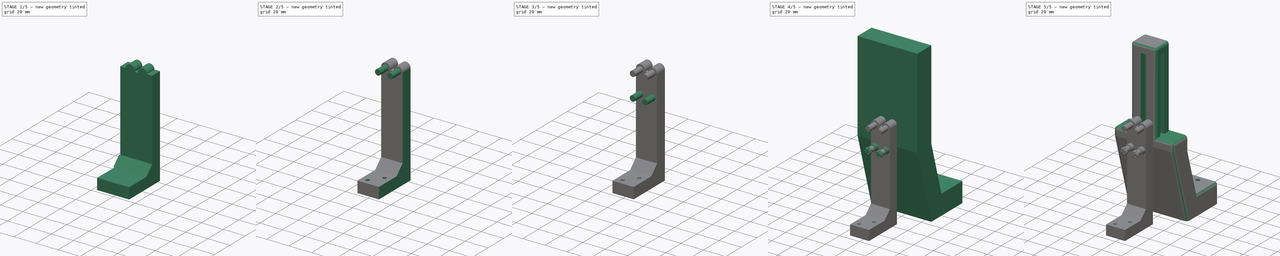
[diagram: build sequence overview — one tinted view per stage of 5, left to right]
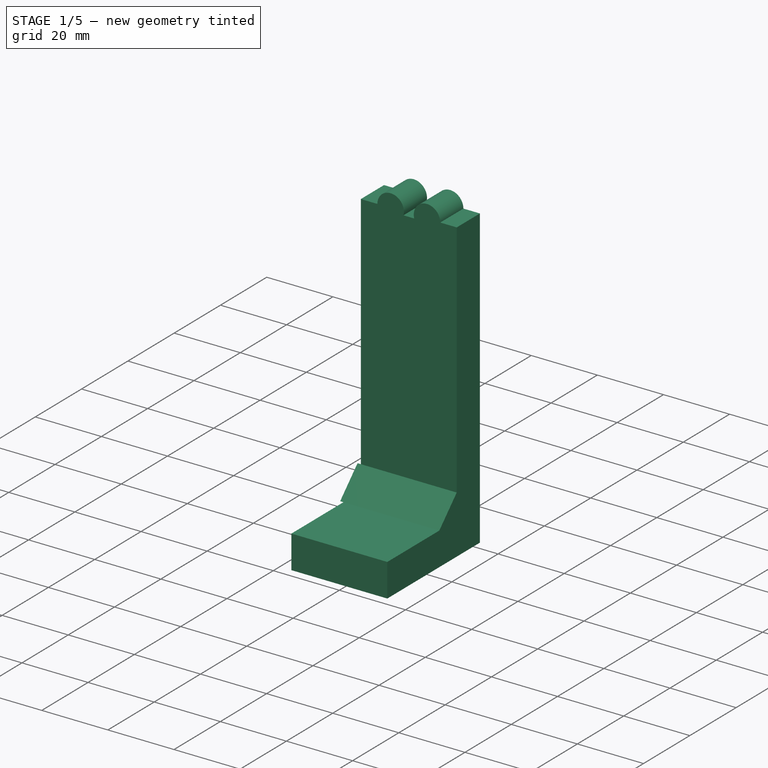
[diagram: stage 1 of 5 — iso view after this stage's code; geometry added in this stage tinted green]
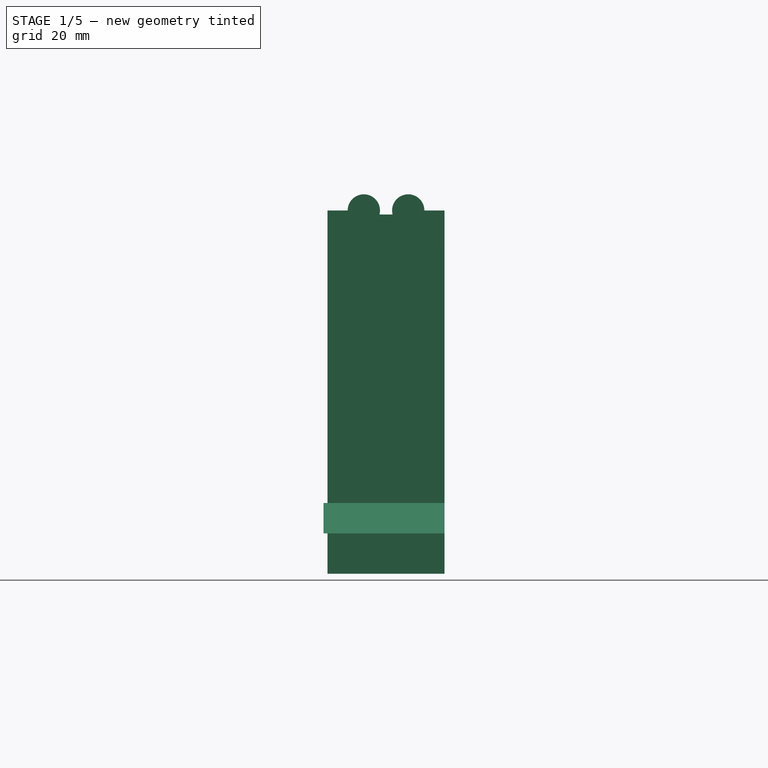
[diagram: stage 1 of 5 — front view after this stage's code; geometry added in this stage tinted green]
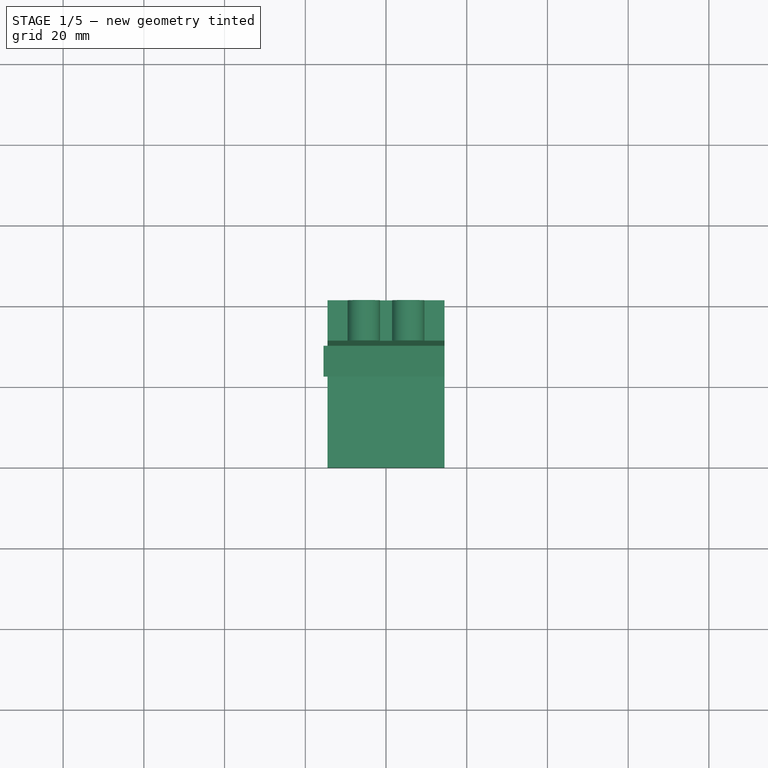
[diagram: stage 1 of 5 — top view after this stage's code; geometry added in this stage tinted green]
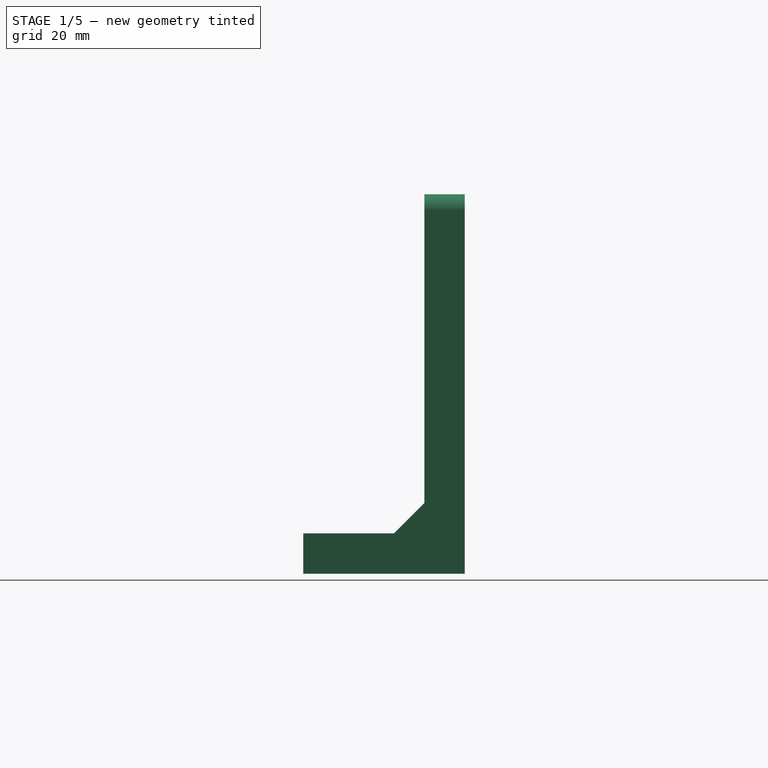
[diagram: stage 1 of 5 — right view after this stage's code; geometry added in this stage tinted green]
FCSTD DOCUMENT  (FreeCAD 1.0R39319 (Git))
Label: support gauge v2 
License: All rights reserved
LicenseURL: https://en.wikipedia.org/wiki/All_rights_reserved
objects: Sketcher::SketchObject×19, PartDesign::Pad×11, PartDesign::Pocket×7, PartDesign::Body×5, PartDesign::SubShapeBinder×3, PartDesign::Fillet×1, PartDesign::Revolution×1, PartDesign::PolarPattern×1, PartDesign::Boolean×1
note: 110 computed .brp shape members not serialized (recipe doc carries the construction recipe); baked Part::Feature solids carry a one-line shape summary decoded from their .brp

FEATURE [PartDesign::Body] Body002  label="Body002 extérieur"
  AllowCompound = false
  Group = -> [Sketch010,Pad003,Sketch012,Pad004,Sketch013,Pocket006,Sketch014,Pad005,Sketch015,Pad006]
  Origin = -> Origin002
  Tip = -> Pad006
FEATURE [Sketcher::SketchObject] Sketch016
  ArcFitTolerance = 1e-06
  AttachmentSupport = -> [XZ_Plane005]
  FullyConstrained = false
  MakeInternals = false
  MapMode = 5
  Placement = pos=(0,0,0) rot=(1,0,0;1.5708rad)
  sketch-geometry (11):
    g0: ArcOfCircle CenterX=5.5 CenterY=90 CenterZ=0 NormalX=0 NormalY=0 NormalZ=1 AngleXU=0 Radius=4 StartAngle=0 EndAngle=3.39427
    g1: ArcOfCircle CenterX=-5.5 CenterY=90 CenterZ=0 NormalX=0 NormalY=0 NormalZ=1 AngleXU=0 Radius=4 StartAngle=6.03051 EndAngle=9.42478
    g2: LineSegment StartX=-1.62702 StartY=89 StartZ=0 EndX=1.62702 EndY=89 EndZ=0
    g3: LineSegment [constr] StartX=-21.0158 StartY=90 StartZ=0 EndX=17.6737 EndY=90 EndZ=0
    g4: LineSegment StartX=-14.5 StartY=0 StartZ=0 EndX=14.5 EndY=0 EndZ=0
    g5: LineSegment StartX=9.5 StartY=90 StartZ=0 EndX=14.5 EndY=90 EndZ=0
    g6: LineSegment StartX=14.5 StartY=90 StartZ=0 EndX=14.5 EndY=0 EndZ=0
    g7: LineSegment StartX=9.5 StartY=90 StartZ=0 EndX=14.5 EndY=90 EndZ=0
    g8: LineSegment StartX=9.5 StartY=90 StartZ=0 EndX=14.5 EndY=90 EndZ=0
    g9: LineSegment StartX=-9.5 StartY=90 StartZ=0 EndX=-14.5 EndY=90 EndZ=0
    g10: LineSegment StartX=-14.5 StartY=90 StartZ=0 EndX=-14.5 EndY=0 EndZ=0
  constraints (29):
    c: Symmetric(g0,g1,g-2)
    c: Coincident(g2,g1)
    c: Coincident(g2,g0)
    c: Symmetric(g0,g1,g-2)
    c: Symmetric(g1,g0,g-2)
    c: PointOnObject(g0,g3)
    c: PointOnObject(g0,g3)
    c: PointOnObject(g1,g3)
    c: Radius(g0) = 4
    c: Symmetric(g4,g4,g-2)
    c: PointOnObject(g4,g-1)
    c: Parallel(g3,g-1)
    c: Distance(g3,g-1) = 90
    c: Distance(g3,g2) = 1
    c: DistanceX(g1,g0) = 11
    c: PointOnObject(g5,g3)
    c: Coincident(g6,g5)
    c: Vertical(g6)
    c: Coincident(g0,g5)
    c: Coincident(g7,g0)
    c: Coincident(g7,g5)
    c: Coincident(g8,g0)
    c: Coincident(g4,g6)
    c: Coincident(g9,g1)
    c: PointOnObject(g9,g3)
    c: Coincident(g10,g4)
    c: Vertical(g10)
    c: DistanceX(g9,g9) = 5
    c: Coincident(g10,g9)
FEATURE [PartDesign::Pad] Pad007
  Direction = (0,-1,2e-16)
  Length = 10
  Length2 = 10
  Placement = pos=(0,0,0) rot=(1,0,0;1.5708rad)
  Profile = -> Sketch016
  ReferenceAxis = -> Sketch016 [N_Axis]
  Refine = true
  Suppressed = false
  Type = 0
FEATURE [Sketcher::SketchObject] Sketch017
  ArcFitTolerance = 1e-06
  AttachmentSupport = -> [Pad007]
  ExternalGeometry = -> [Pad007]
  FullyConstrained = true
  MakeInternals = false
  MapMode = 5
  Placement = pos=(0,-10,2.2e-15) rot=(1,0,0;1.5708rad)
  sketch-geometry (4):
    g0: LineSegment StartX=14.5 StartY=0 StartZ=0 EndX=14.5 EndY=10 EndZ=0
    g1: LineSegment StartX=14.5 StartY=10 StartZ=0 EndX=-14.5 EndY=10 EndZ=0
    g2: LineSegment StartX=-14.5 StartY=10 StartZ=0 EndX=-14.5 EndY=0 EndZ=0
    g3: LineSegment StartX=-14.5 StartY=0 StartZ=0 EndX=14.5 EndY=0 EndZ=0
  constraints (10):
    c: Coincident(g0,g1)
    c: Coincident(g1,g2)
    c: Coincident(g2,g3)
    c: Coincident(g3,g0)
    c: Vertical(g0)
    c: Vertical(g2)
    c: Horizontal(g1)
    c: Coincident(g0,g-4)
    c: DistanceY(g0,g0) = 10
    c: Coincident(g2,g-4)
FEATURE [PartDesign::Pad] Pad008
  BaseFeature = -> Pad007
  Direction = (0,-1,2e-16)
  Length = 30
  Length2 = 10
  Placement = pos=(0,0,0) rot=(1,0,0;1.5708rad)
  Profile = -> Sketch017
  ReferenceAxis = -> Sketch017 [N_Axis]
  Refine = true
  Suppressed = false
  Type = 0
FEATURE [Sketcher::SketchObject] Sketch018
  ArcFitTolerance = 1e-06
  AttachmentSupport = -> [Pad008]
  FullyConstrained = true
  MakeInternals = false
  MapMode = 5
  Placement = pos=(0,0,0) rot=(1,0,0;1.5708rad)
  sketch-geometry (2):
    g0: Circle CenterX=-4 CenterY=25 CenterZ=0 NormalX=0 NormalY=0 NormalZ=1 AngleXU=0 Radius=1.6
    g1: Circle CenterX=4 CenterY=35 CenterZ=0 NormalX=0 NormalY=0 NormalZ=1 AngleXU=0 Radius=1.6
  constraints (6):
    c: Diameter(g0) = 3.2
    c: Diameter(g1) = 3.2
    c: Distance(g0,g-2) = 4
    c: Distance(g1,g-2) = 4
    c: DistanceY(g-1,g1) = 35
    c: DistanceY(g-1,g0) = 25
FEATURE [PartDesign::Pocket] Pocket007
  BaseFeature = -> Pad008
  Direction = (0,1,-2e-16)
  Length = 5
  Length2 = 5
  Placement = pos=(0,0,0) rot=(1,0,0;1.5708rad)
  Profile = -> Sketch018
  ReferenceAxis = -> Sketch018 [N_Axis]
  Refine = true
  Suppressed = false
  Type = 1
FEATURE [Sketcher::SketchObject] Sketch019
  ArcFitTolerance = 1e-06
  AttachmentSupport = -> [Pocket007]
  FullyConstrained = false
  MakeInternals = false
  MapMode = 5
  Placement = pos=(14.5,0,0) rot=(0.707107,0,0.707107;3.14159rad)
  sketch-geometry (3):
    g0: LineSegment StartX=10 StartY=17.5173 StartZ=0 EndX=17.5173 EndY=10 EndZ=0
    g1: LineSegment StartX=10 StartY=17.5173 StartZ=0 EndX=10 EndY=10 EndZ=0
    g2: LineSegment StartX=10 StartY=10 StartZ=0 EndX=17.5173 EndY=10 EndZ=0
  constraints (9):
    c: Angle(g-1,g0) = -0.785398
    c: PointOnObject(g0,g-4)
    c: PointOnObject(g0,g-3)
    c: DistanceY(g-4,g0) = 7.51734
    c: PointOnObject(g1,g-3)
    c: Vertical(g1)
    c: Coincident(g1,g2)
    c: Coincident(g2,g0)
    c: Coincident(g1,g0)
FEATURE [PartDesign::Pad] Pad009
  BaseFeature = -> Pocket007
  Direction = (1,0,-2e-16)
  Length = 30
  Length2 = 10
  Placement = pos=(0,0,0) rot=(1,0,0;1.5708rad)
  Profile = -> Sketch019
  ReferenceAxis = -> Sketch019 [N_Axis]
  Refine = true
  Reversed = true
  Suppressed = false
  Type = 0
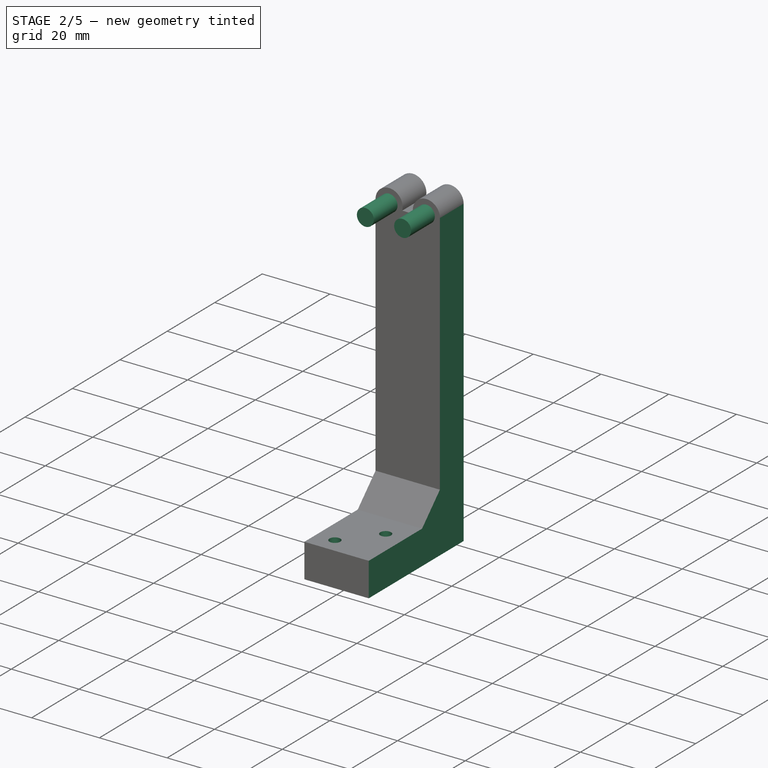
[diagram: stage 2 of 5 — iso view after this stage's code; geometry added in this stage tinted green]
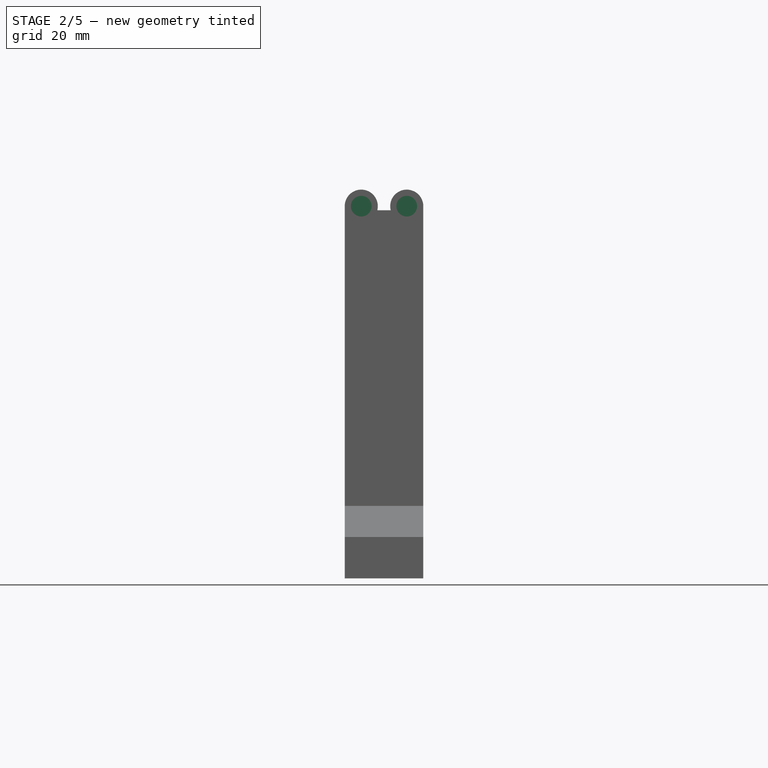
[diagram: stage 2 of 5 — front view after this stage's code; geometry added in this stage tinted green]
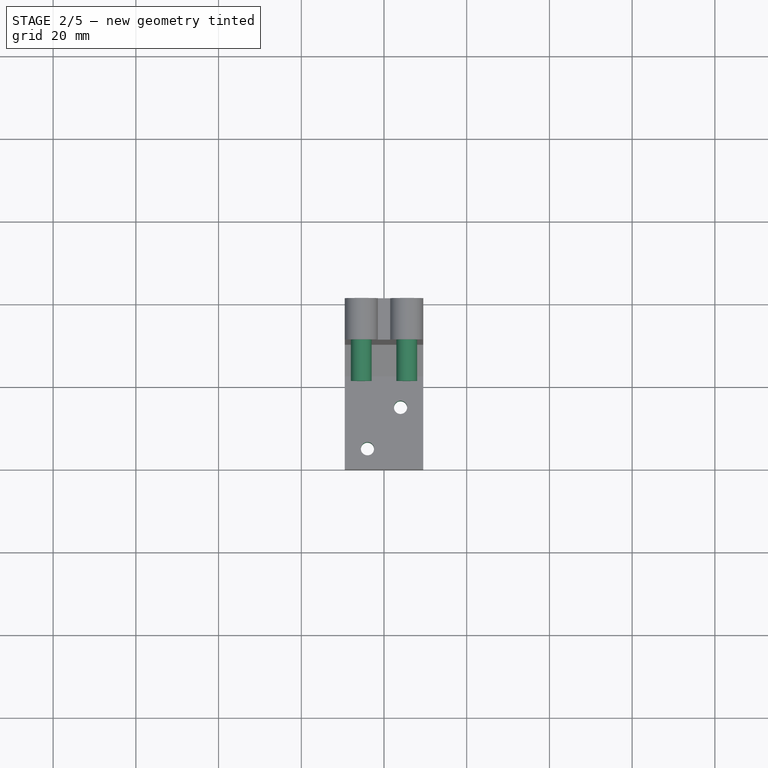
[diagram: stage 2 of 5 — top view after this stage's code; geometry added in this stage tinted green]
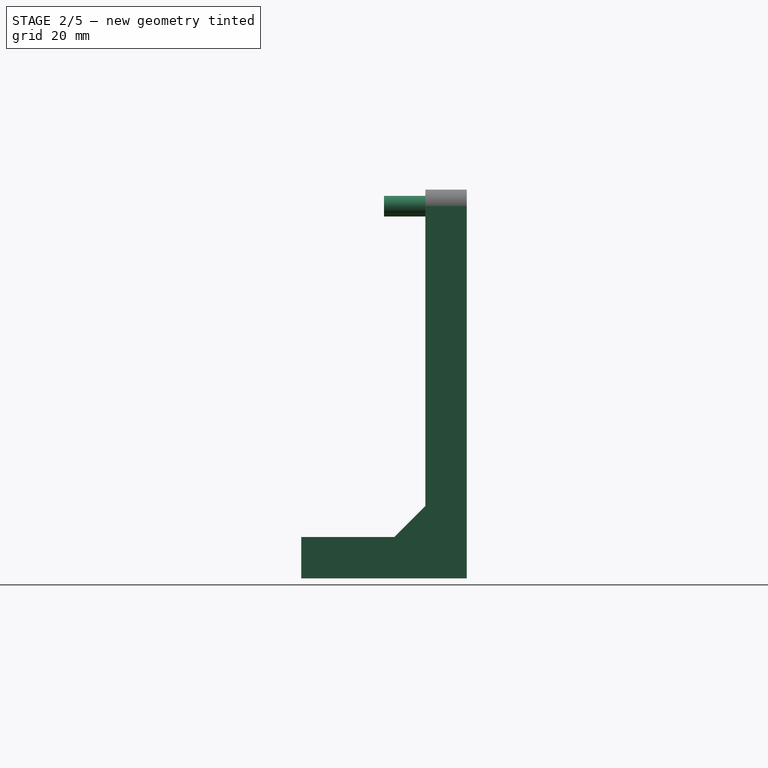
[diagram: stage 2 of 5 — right view after this stage's code; geometry added in this stage tinted green]
FEATURE [PartDesign::Body] Body001
  AllowCompound = false
  Group = -> [Sketch004,Pad001,Sketch005,Revolution,Sketch006,Pocket003,PolarPattern,Sketch007,Pocket004,Sketch008,Pad002]
  Origin = -> Origin001
  Tip = -> Pad002
FEATURE [Sketcher::SketchObject] Sketch010
  ArcFitTolerance = 1e-06
  AttachmentSupport = -> [XZ_Plane002]
  FullyConstrained = false
  MakeInternals = false
  MapMode = 5
  Placement = pos=(0,0,0) rot=(1,0,0;1.5708rad)
  sketch-geometry (7):
    g0: LineSegment StartX=9.5 StartY=0 StartZ=0 EndX=9.5 EndY=70 EndZ=0
    g1: LineSegment StartX=-9.5 StartY=70 StartZ=0 EndX=-9.5 EndY=0 EndZ=0
    g2: ArcOfCircle CenterX=5.5 CenterY=70 CenterZ=0 NormalX=0 NormalY=0 NormalZ=1 AngleXU=0 Radius=4 StartAngle=1.2e-15 EndAngle=2.88891
    g3: ArcOfCircle CenterX=-5.5 CenterY=70 CenterZ=0 NormalX=0 NormalY=0 NormalZ=1 AngleXU=0 Radius=4 StartAngle=0.25268 EndAngle=3.14159
    g4: LineSegment StartX=-1.62702 StartY=71 StartZ=0 EndX=1.62702 EndY=71 EndZ=0
    g5: LineSegment [constr] StartX=-20.9983 StartY=70 StartZ=0 EndX=17.6992 EndY=70 EndZ=0
    g6: LineSegment StartX=-9.5 StartY=0 StartZ=0 EndX=9.5 EndY=0 EndZ=0
  constraints (21):
    c: Vertical(g0)
    c: Symmetric(g0,g1,g-2)
    c: Coincident(g2,g0)
    c: PointOnObject(g3,g1)
    c: Coincident(g4,g3)
    c: Coincident(g4,g2)
    c: Symmetric(g2,g3,g-2)
    c: Coincident(g3,g1)
    c: Symmetric(g3,g2,g-2)
    c: PointOnObject(g0,g5)
    c: PointOnObject(g2,g5)
    c: PointOnObject(g3,g5)
    c: Radius(g2) = 4
    c: Symmetric(g1,g0,g-2)
    c: PointOnObject(g0,g-1)
    c: Parallel(g5,g-1)
    c: Distance(g5,g-1) = 70
    c: Distance(g5,g4) = 1
    c: Coincident(g6,g1)
    c: Coincident(g6,g0)
    c: DistanceX(g3,g2) = 11
FEATURE [PartDesign::Pad] Pad003
  Direction = (0,-1,2e-16)
  Length = 10
  Length2 = 10
  Placement = pos=(0,0,0) rot=(1,0,0;1.5708rad)
  Profile = -> Sketch010
  ReferenceAxis = -> Sketch010 [N_Axis]
  Refine = true
  Suppressed = false
  Type = 0
FEATURE [Sketcher::SketchObject] Sketch012
  ArcFitTolerance = 1e-06
  AttachmentSupport = -> [Pad003]
  ExternalGeometry = -> [Pad003]
  FullyConstrained = true
  MakeInternals = false
  MapMode = 5
  Placement = pos=(0,-10,0) rot=(1,0,0;1.5708rad)
  sketch-geometry (4):
    g0: LineSegment StartX=-9.5 StartY=0 StartZ=0 EndX=9.5 EndY=0 EndZ=0
    g1: LineSegment StartX=9.5 StartY=0 StartZ=0 EndX=9.5 EndY=10 EndZ=0
    g2: LineSegment StartX=9.5 StartY=10 StartZ=0 EndX=-9.5 EndY=10 EndZ=0
    g3: LineSegment StartX=-9.5 StartY=10 StartZ=0 EndX=-9.5 EndY=0 EndZ=0
  constraints (11):
    c: Coincident(g0,g1)
    c: Coincident(g1,g2)
    c: Coincident(g2,g3)
    c: Coincident(g3,g0)
    c: Horizontal(g0)
    c: Horizontal(g2)
    c: Vertical(g1)
    c: Vertical(g3)
    c: Coincident(g0,g-4)
    c: PointOnObject(g1,g-3)
    c: DistanceY(g1,g1) = 10
FEATURE [PartDesign::Pad] Pad004
  BaseFeature = -> Pad003
  Direction = (0,-1,2e-16)
  Length = 30
  Length2 = 10
  Placement = pos=(0,0,0) rot=(1,0,0;1.5708rad)
  Profile = -> Sketch012
  ReferenceAxis = -> Sketch012 [N_Axis]
  Refine = true
  Suppressed = false
  Type = 0
FEATURE [Sketcher::SketchObject] Sketch013
  ArcFitTolerance = 1e-06
  AttachmentSupport = -> [Pad004]
  FullyConstrained = false
  MakeInternals = false
  MapMode = 5
  Placement = pos=(0,4.4e-15,10) rot=(0,0,1;3.14159rad)
  sketch-geometry (8):
    g0: Circle CenterX=-4 CenterY=25 CenterZ=0 NormalX=0 NormalY=0 NormalZ=1 AngleXU=0 Radius=1.6
    g1: Circle CenterX=4 CenterY=35 CenterZ=0 NormalX=0 NormalY=0 NormalZ=1 AngleXU=0 Radius=1.6
    g2: LineSegment [constr] StartX=23.1136 StartY=15 StartZ=0 EndX=-20.5363 EndY=15 EndZ=0
    g3: LineSegment [constr] StartX=22.5243 StartY=35 StartZ=0 EndX=-20.9039 EndY=35 EndZ=0
    g4: LineSegment [constr] StartX=-4 StartY=-2.99941 StartZ=0 EndX=-4 EndY=60.9912 EndZ=0
    g5: LineSegment [constr] StartX=20.0635 StartY=35.146 StartZ=0 EndX=-20.9747 EndY=35.146 EndZ=0
    g6: LineSegment [constr] StartX=4 StartY=34.4462 StartZ=0 EndX=4 EndY=9.55381 EndZ=0
    g7: LineSegment [constr] StartX=-27.5537 StartY=25 StartZ=0 EndX=50.1861 EndY=25 EndZ=0
  constraints (20):
    c: Diameter(g0) = 3.2
    c: Diameter(g1) = 3.2
    c: Horizontal(g2)
    c: Horizontal(g3)
    c: Distance(g2,g-1) = 15
    c: Angle(g-2,g4) = 1e-16
    c: Parallel(g-2,g4)
    c: Distance(g4,g-2) = 4
    c: Horizontal(g5)
    c: Distance(g5,g3) = 0.145982
    c: Distance(g-1,g3) = 35
    c: Vertical(g6)
    c: PointOnObject(g1,g6)
    c: Horizontal(g7)
    c: PointOnObject(g0,g4)
    c: PointOnObject(g0,g7)
    c: Distance(g7,g3) = 10
    c: PointOnObject(g1,g3)
    c: Distance(g-1,g7) = 25
    c: Distance(g-2,g6) = 4
FEATURE [PartDesign::Pocket] Pocket006
  BaseFeature = -> Pad004
  Direction = (0,0,-1)
  Length = 5
  Length2 = 5
  Placement = pos=(0,0,0) rot=(1,0,0;1.5708rad)
  Profile = -> Sketch013
  ReferenceAxis = -> Sketch013 [N_Axis]
  Refine = true
  Suppressed = false
  Type = 1
FEATURE [PartDesign::SubShapeBinder] Binder
  BindCopyOnChange = 0
  BindMode = 0
  ClaimChildren = false
  Context = -> Body004 [Boolean.Binder.]
  Fuse = false
  MakeFace = true
  OffsetFill = false
  OffsetIntersection = false
  OffsetJoinType = 0
  OffsetOpenResult = false
  PartialLoad = false
  Refine = true
  Relative = true
  Support = -> [Body002]
  _Version = 2
FEATURE [PartDesign::SubShapeBinder] Binder001
  BindCopyOnChange = 0
  BindMode = 0
  ClaimChildren = false
  Context = -> Body004 [Boolean.Binder001.]
  Fuse = false
  MakeFace = true
  OffsetFill = false
  OffsetIntersection = false
  OffsetJoinType = 0
  OffsetOpenResult = false
  PartialLoad = false
  Placement = pos=(-5.5,-10,70) rot=(1,0,0;1.5708rad)
  Refine = true
  Relative = true
  Support = -> [Body001]
  _Version = 2
FEATURE [PartDesign::SubShapeBinder] Binder002
  BindCopyOnChange = 0
  BindMode = 0
  ClaimChildren = false
  Context = -> Body004 [Boolean.Binder002.]
  Fuse = false
  MakeFace = true
  OffsetFill = false
  OffsetIntersection = false
  OffsetJoinType = 0
  OffsetOpenResult = false
  PartialLoad = false
  Placement = pos=(5.5,-10,70) rot=(1,0,0;1.5708rad)
  Refine = true
  Relative = true
  Support = -> [Body001]
  _Version = 2
FEATURE [Sketcher::SketchObject] Sketch014
  ArcFitTolerance = 1e-06
  AttachmentSupport = -> [Pocket006]
  ExternalGeometry = -> [Pocket006]
  FullyConstrained = false
  MakeInternals = false
  MapMode = 5
  Placement = pos=(9.5,0,0) rot=(0.707107,0,0.707107;3.14159rad)
  sketch-geometry (3):
    g0: LineSegment StartX=10 StartY=17.5173 StartZ=0 EndX=17.5173 EndY=10 EndZ=0
    g1: LineSegment StartX=10 StartY=17.5173 StartZ=0 EndX=10 EndY=10 EndZ=0
    g2: LineSegment StartX=10 StartY=10 StartZ=0 EndX=17.5173 EndY=10 EndZ=0
  constraints (9):
    c: Angle(g-1,g0) = -0.785398
    c: PointOnObject(g0,g-4)
    c: PointOnObject(g0,g-3)
    c: DistanceY(g-4,g0) = 7.51734
    c: PointOnObject(g1,g-3)
    c: Vertical(g1)
    c: Coincident(g1,g2)
    c: Coincident(g2,g0)
    c: Coincident(g1,g0)
FEATURE [PartDesign::Pad] Pad005
  BaseFeature = -> Pocket006
  Direction = (1,0,-2e-16)
  Length = 19
  Length2 = 10
  Placement = pos=(0,0,0) rot=(1,0,0;1.5708rad)
  Profile = -> Sketch014
  ReferenceAxis = -> Sketch014 [N_Axis]
  Refine = true
  Reversed = true
  Suppressed = false
  Type = 0
FEATURE [Sketcher::SketchObject] Sketch020
  ArcFitTolerance = 1e-06
  AttachmentSupport = -> [Pad009]
  ExternalGeometry = -> [Pad009]
  FullyConstrained = true
  MakeInternals = false
  MapMode = 5
  Placement = pos=(0,-10,2.2e-15) rot=(1,0,0;1.5708rad)
  sketch-geometry (2):
    g0: Circle CenterX=-5.5 CenterY=90 CenterZ=0 NormalX=0 NormalY=0 NormalZ=1 AngleXU=0 Radius=2.5
    g1: Circle CenterX=5.5 CenterY=90 CenterZ=0 NormalX=0 NormalY=0 NormalZ=1 AngleXU=0 Radius=2.5
  constraints (4):
    c: Coincident(g0,g-3)
    c: Diameter(g1) = 5
    c: Coincident(g1,g-4)
    c: Diameter(g0) = 5
FEATURE [PartDesign::Pad] Pad010
  BaseFeature = -> Pad009
  Direction = (0,-1,2e-16)
  Length = 10
  Length2 = 10
  Placement = pos=(0,0,0) rot=(1,0,0;1.5708rad)
  Profile = -> Sketch020
  ReferenceAxis = -> Sketch020 [N_Axis]
  Refine = true
  Suppressed = false
  Type = 0
FEATURE [PartDesign::Body] Body005  label="Body005 intérieur"
  AllowCompound = false
  Group = -> [Sketch016,Pad007,Sketch017,Pad008,Sketch018,Pocket007,Sketch019,Pad009,Sketch020,Pad010]
  Origin = -> Origin005
  Tip = -> Pad010
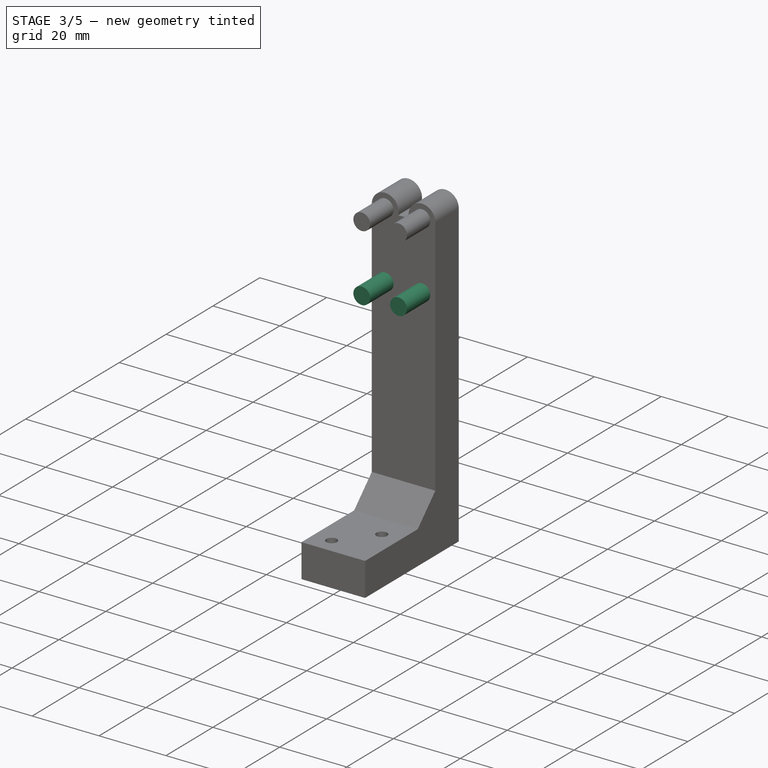
[diagram: stage 3 of 5 — iso view after this stage's code; geometry added in this stage tinted green]
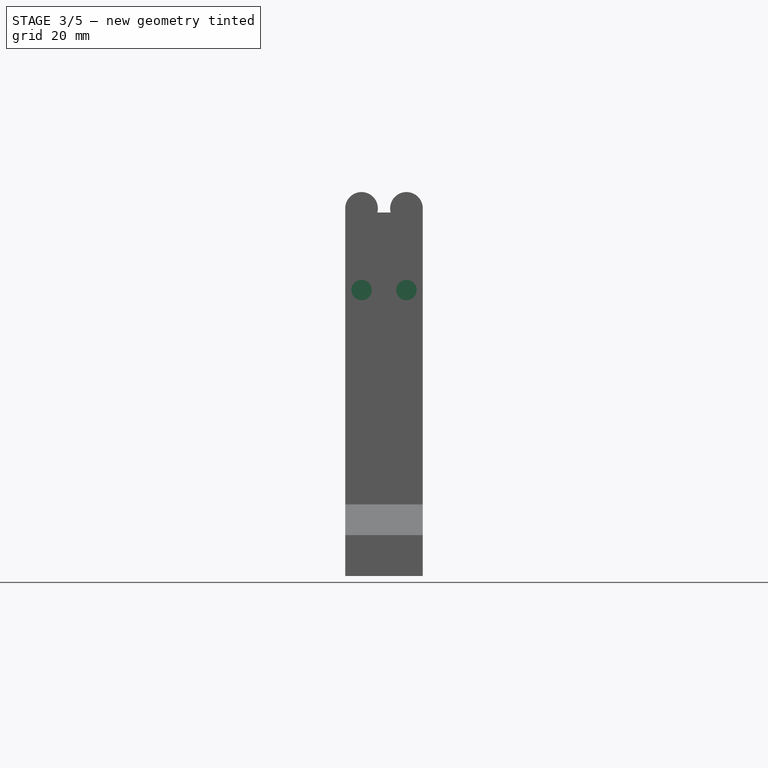
[diagram: stage 3 of 5 — front view after this stage's code; geometry added in this stage tinted green]
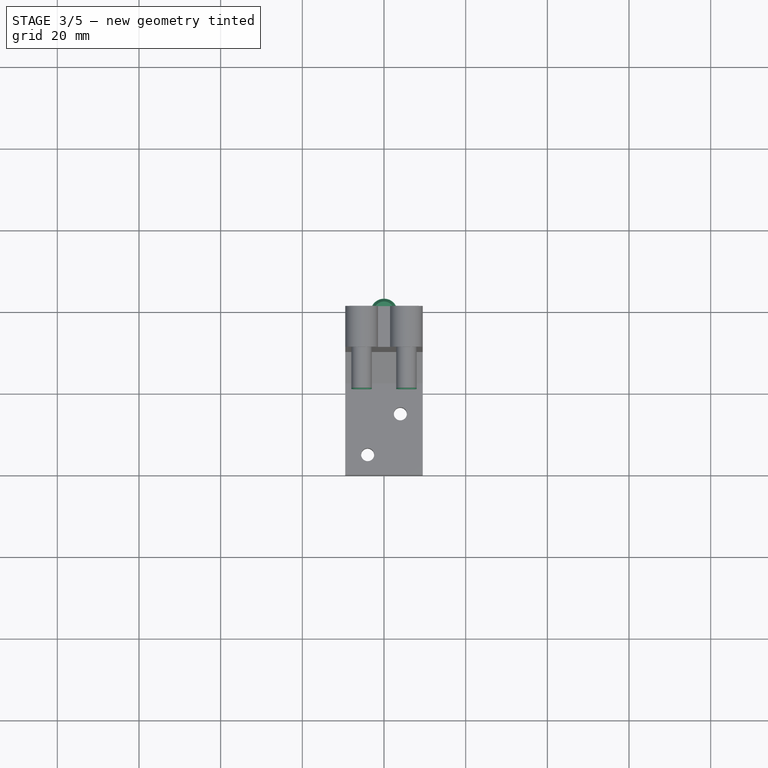
[diagram: stage 3 of 5 — top view after this stage's code; geometry added in this stage tinted green]
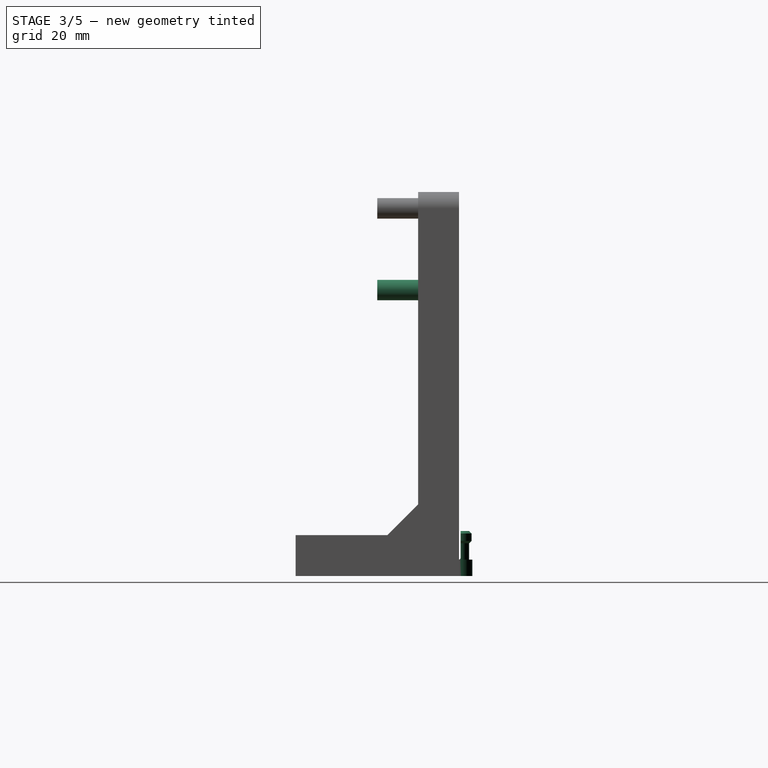
[diagram: stage 3 of 5 — right view after this stage's code; geometry added in this stage tinted green]
FEATURE [PartDesign::Body] Body
  AllowCompound = false
  Group = -> [Sketch,Pad,Sketch001,Pocket,Sketch002,Pocket001,Sketch003,Pocket002,Fillet]
  Origin = -> Origin
  Tip = -> Fillet
FEATURE [Sketcher::SketchObject] Sketch004
  ArcFitTolerance = 1e-06
  AttachmentSupport = -> [XY_Plane001]
  FullyConstrained = true
  MakeInternals = false
  MapMode = 5
  sketch-geometry (1):
    g0: Circle CenterX=0 CenterY=0 CenterZ=0 NormalX=0 NormalY=0 NormalZ=1 AngleXU=0 Radius=2.5
  constraints (2):
    c: Coincident(g0,g-1)
    c: Diameter(g0) = 5
FEATURE [PartDesign::Pad] Pad001
  Direction = (0,0,1)
  Length = 11
  Length2 = 10
  Profile = -> Sketch004
  ReferenceAxis = -> Sketch004 [N_Axis]
  Refine = true
  Suppressed = false
  Type = 0
FEATURE [Sketcher::SketchObject] Sketch005
  ArcFitTolerance = 1e-06
  AttachmentSupport = -> [XZ_Plane001]
  ExternalGeometry = -> [Pad001]
  FullyConstrained = true
  MakeInternals = false
  MapMode = 5
  Placement = pos=(0,0,0) rot=(1,0,0;1.5708rad)
  sketch-geometry (10):
    g0: LineSegment StartX=2.5 StartY=11 StartZ=0 EndX=3.1 EndY=10.4 EndZ=0
    g1: LineSegment StartX=3.1 StartY=10.4 StartZ=0 EndX=3.1 EndY=8.6 EndZ=0
    g2: LineSegment StartX=3.1 StartY=8.6 StartZ=0 EndX=2.5 EndY=8 EndZ=0
    g3: LineSegment StartX=2.5 StartY=8 StartZ=0 EndX=2.5 EndY=11 EndZ=0
    g4: LineSegment StartX=2.5 StartY=1.5 StartZ=0 EndX=2.3 EndY=1.5 EndZ=0
    g5: LineSegment StartX=2.3 StartY=1.5 StartZ=0 EndX=2.3 EndY=4 EndZ=0
    g6: LineSegment StartX=2.3 StartY=4 StartZ=0 EndX=3.3 EndY=4 EndZ=0
    g7: LineSegment StartX=3.3 StartY=4 StartZ=0 EndX=3.3 EndY=0 EndZ=0
    g8: LineSegment StartX=3.3 StartY=0 StartZ=0 EndX=2.5 EndY=0 EndZ=0
    g9: LineSegment StartX=2.5 StartY=0 StartZ=0 EndX=2.5 EndY=1.5 EndZ=0
  constraints (29):
    c: Coincident(g-3,g0)
    c: Coincident(g0,g1)
    c: Vertical(g1)
    c: Coincident(g1,g2)
    c: PointOnObject(g2,g-3)
    c: Coincident(g3,g2)
    c: Coincident(g3,g0)
    c: Angle(g2,g3) = 0.785398
    c: Angle(g3,g0) = 0.785398
    c: DistanceY(g3,g3) = 3
    c: Distance(g1,g3) = 0.6
    c: PointOnObject(g4,g-3)
    c: Horizontal(g4)
    c: Coincident(g4,g5)
    c: Vertical(g5)
    c: Coincident(g5,g6)
    c: Horizontal(g6)
    c: Coincident(g6,g7)
    c: Vertical(g7)
    c: PointOnObject(g8,g-3)
    c: Horizontal(g8)
    c: Coincident(g8,g9)
    c: Coincident(g9,g4)
    c: Distance(g6,g6) = 1
    c: Distance(g4,g4) = 0.2
    c: PointOnObject(g8,g-1)
    c: Distance(g8,g6) = 4
    c: Distance(g8,g4) = 1.5
    c: Coincident(g8,g7)
FEATURE [PartDesign::Revolution] Revolution
  Angle = 360
  Angle2 = 60
  Axis = (0,2e-16,1)
  Base = (0,0,0)
  BaseFeature = -> Pad001
  Profile = -> Sketch005
  ReferenceAxis = -> Sketch005 [V_Axis]
  Refine = true
  Reversed = true
  Suppressed = false
  Type = 0
FEATURE [Sketcher::SketchObject] Sketch006
  ArcFitTolerance = 1e-06
  AttachmentSupport = -> [YZ_Plane001]
  FullyConstrained = true
  MakeInternals = false
  MapMode = 5
  Placement = pos=(0,0,0) rot=(0.57735,0.57735,0.57735;2.0944rad)
  sketch-geometry (4):
    g0: ArcOfCircle CenterX=0 CenterY=4.4 CenterZ=0 NormalX=0 NormalY=0 NormalZ=1 AngleXU=0 Radius=0.4 StartAngle=3.14159 EndAngle=6.28319
    g1: ArcOfCircle CenterX=0 CenterY=14.4 CenterZ=0 NormalX=0 NormalY=0 NormalZ=1 AngleXU=0 Radius=0.4 StartAngle=1.8e-15 EndAngle=3.14159
    g2: LineSegment StartX=-0.4 StartY=4.4 StartZ=0 EndX=-0.4 EndY=14.4 EndZ=0
    g3: LineSegment StartX=0.4 StartY=4.4 StartZ=0 EndX=0.4 EndY=14.4 EndZ=0
  constraints (10):
    c: Tangent(g0,g2) = 1.5708
    c: Tangent(g0,g3) = -1.5708
    c: Tangent(g1,g2) = 1.5708
    c: Tangent(g1,g3) = -1.5708
    c: Equal(g0,g1)
    c: Vertical(g3)
    c: Distance(g0,g1) = 10
    c: Radius(g0) = 0.4
    c: PointOnObject(g1,g-2)
    c: Distance(g0,g-1) = 4
FEATURE [PartDesign::Pocket] Pocket003
  BaseFeature = -> Revolution
  Direction = (-1,0,0)
  Length = 5
  Length2 = 5
  Profile = -> Sketch006
  ReferenceAxis = -> Sketch006 [N_Axis]
  Refine = true
  Suppressed = false
  Type = 4
FEATURE [PartDesign::Body] Body004
  AllowCompound = false
  Group = -> [Boolean]
  Origin = -> Origin004
  Tip = -> Boolean
FEATURE [Sketcher::SketchObject] Sketch015
  ArcFitTolerance = 1e-06
  AttachmentSupport = -> [Pad005]
  ExternalGeometry = -> [Pad005]
  FullyConstrained = true
  MakeInternals = false
  MapMode = 5
  Placement = pos=(0,-10,0) rot=(1,0,0;1.5708rad)
  sketch-geometry (2):
    g0: Circle CenterX=-5.5 CenterY=70 CenterZ=0 NormalX=0 NormalY=0 NormalZ=1 AngleXU=0 Radius=2.5
    g1: Circle CenterX=5.5 CenterY=70 CenterZ=0 NormalX=0 NormalY=0 NormalZ=1 AngleXU=0 Radius=2.5
  constraints (4):
    c: Coincident(g0,g-3)
    c: Diameter(g1) = 5
    c: Coincident(g1,g-4)
    c: Diameter(g0) = 5
FEATURE [PartDesign::Pad] Pad006
  BaseFeature = -> Pad005
  Direction = (0,-1,2e-16)
  Length = 10
  Length2 = 10
  Placement = pos=(0,0,0) rot=(1,0,0;1.5708rad)
  Profile = -> Sketch015
  ReferenceAxis = -> Sketch015 [N_Axis]
  Refine = true
  Suppressed = false
  Type = 0
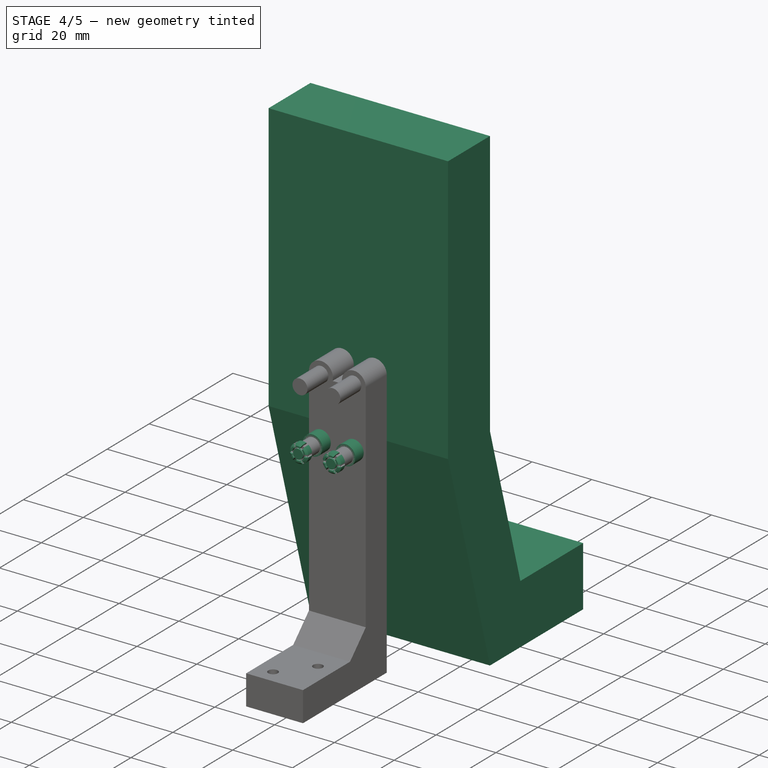
[diagram: stage 4 of 5 — iso view after this stage's code; geometry added in this stage tinted green]
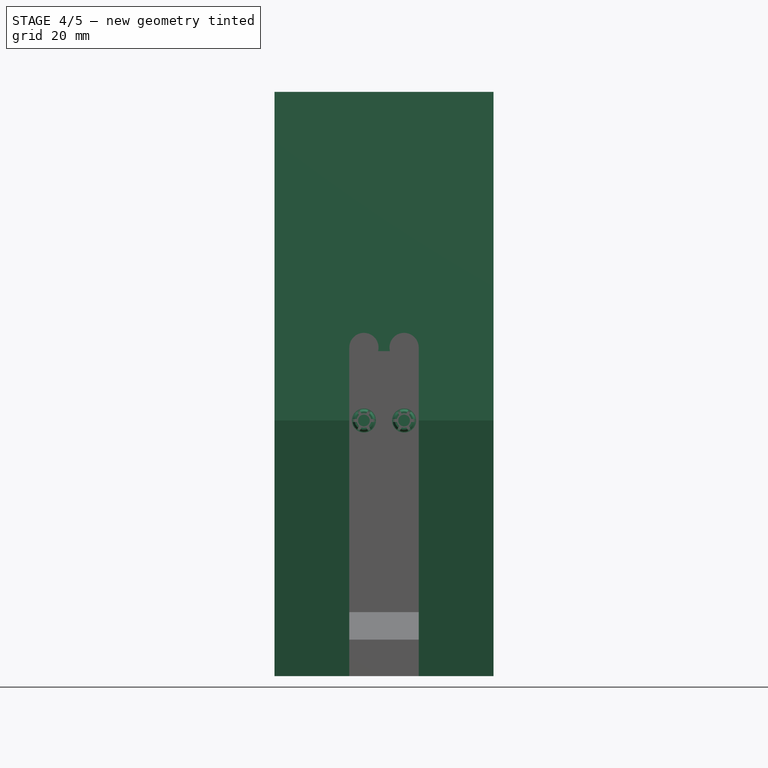
[diagram: stage 4 of 5 — front view after this stage's code; geometry added in this stage tinted green]
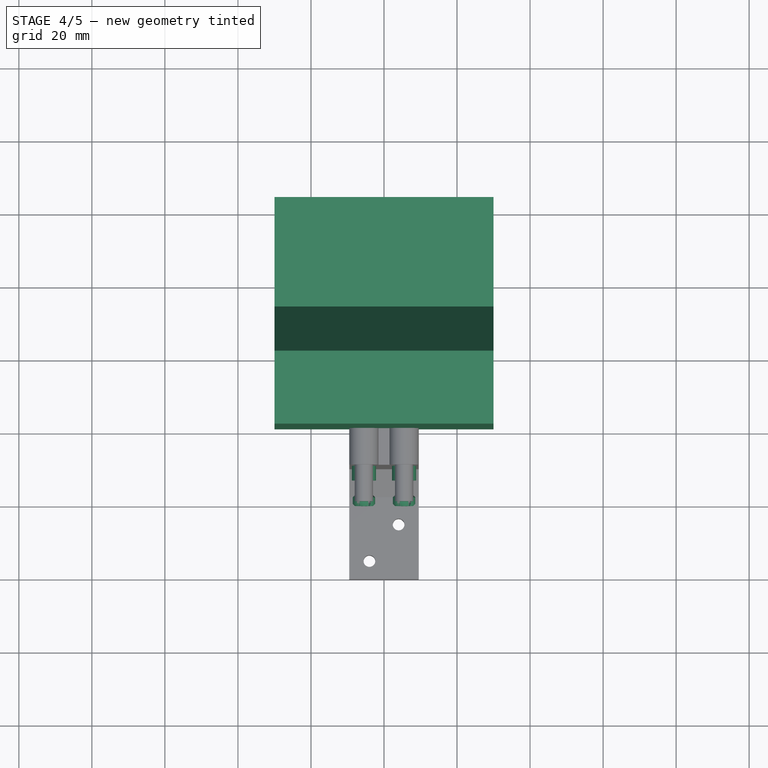
[diagram: stage 4 of 5 — top view after this stage's code; geometry added in this stage tinted green]
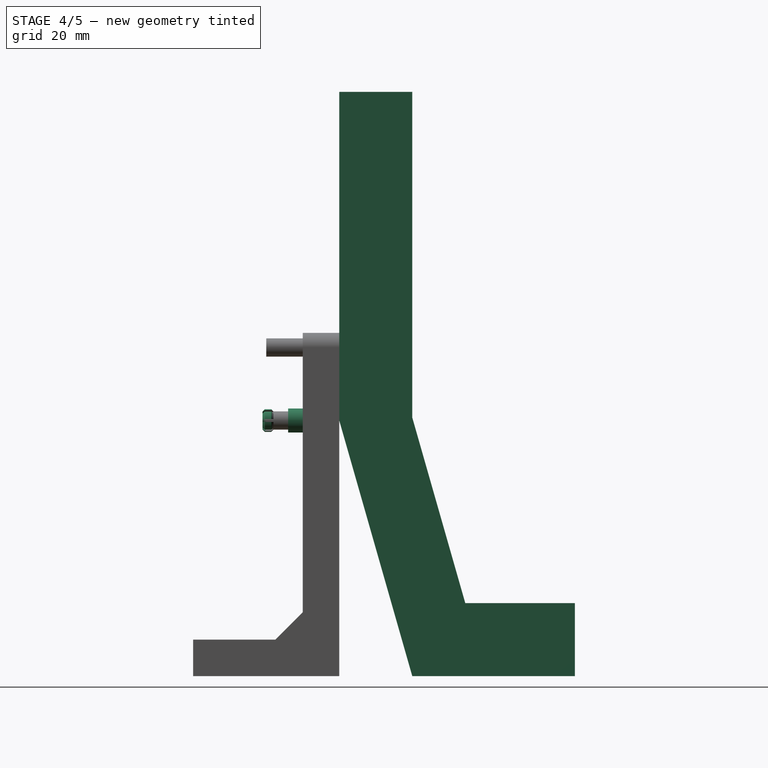
[diagram: stage 4 of 5 — right view after this stage's code; geometry added in this stage tinted green]
FEATURE [Sketcher::SketchObject] Sketch
  ArcFitTolerance = 1e-06
  AttachmentSupport = -> [YZ_Plane]
  FullyConstrained = false
  MakeInternals = false
  MapMode = 5
  Placement = pos=(0,0,0) rot=(0.57735,0.57735,0.57735;2.0944rad)
  sketch-geometry (9):
    g0: LineSegment StartX=64.5162 StartY=20 StartZ=0 EndX=64.5162 EndY=-3.6e-15 EndZ=0
    g1: LineSegment StartX=0 StartY=70 StartZ=0 EndX=0 EndY=160 EndZ=0
    g2: LineSegment StartX=20 StartY=160 StartZ=0 EndX=20 EndY=70.8067 EndZ=0
    g3: LineSegment StartX=0 StartY=70 StartZ=0 EndX=20 EndY=-2.6e-15 EndZ=0
    g4: LineSegment StartX=20 StartY=-3.6e-15 StartZ=0 EndX=64.5162 EndY=-3.6e-15 EndZ=0
    g5: LineSegment StartX=20 StartY=160 StartZ=0 EndX=0 EndY=160 EndZ=0
    g6: LineSegment StartX=20 StartY=70.8067 StartZ=0 EndX=34.5162 EndY=20 EndZ=0
    g7: LineSegment StartX=34.5162 StartY=20 StartZ=0 EndX=64.5162 EndY=20 EndZ=0
    g8: LineSegment [constr] StartX=0.00069084 StartY=70.8751 StartZ=0 EndX=231.635 EndY=70.0827 EndZ=0
  constraints (24):
    c: PointOnObject(g0,g-1)
    c: Vertical(g0)
    c: PointOnObject(g1,g-2)
    c: Vertical(g2)
    c: PointOnObject(g1,g-2)
    c: Coincident(g3,g1)
    c: Coincident(g4,g3)
    c: Coincident(g4,g0)
    c: Horizontal(g4)
    c: DistanceY(g0,g0) = 20
    c: Distance(g1,g-1) = 160
    c: Coincident(g5,g2)
    c: Coincident(g5,g1)
    c: Parallel(g5,g-1)
    c: Distance(g5,g5) = 20
    c: DistanceX(g-1,g3) = 20
    c: Distance(g1,g-1) = 70
    c: Coincident(g2,g6)
    c: Coincident(g6,g7)
    c: Coincident(g7,g0)
    c: Parallel(g7,g-1)
    c: Parallel(g6,g3)
    c: DistanceX(g7,g7) = 30
    c: PointOnObject(g2,g8)
FEATURE [PartDesign::Pad] Pad
  Direction = (1,0,0)
  Length = 60
  Length2 = 10
  Midplane = true
  Placement = pos=(0,0,0) rot=(1,1,1;2.0944rad)
  Profile = -> Sketch
  ReferenceAxis = -> Sketch [N_Axis]
  Refine = true
  Suppressed = false
  Type = 0
FEATURE [PartDesign::PolarPattern] PolarPattern
  Angle = 360
  Axis = -> Sketch006 [V_Axis]
  BaseFeature = -> Pocket003
  Mode = 0
  Occurrences = 3
  Offset = 120
  Originals = -> [Pocket003]
  Refine = true
  Suppressed = false
  TransformMode = 0
FEATURE [Sketcher::SketchObject] Sketch007
  ArcFitTolerance = 1e-06
  AttachmentSupport = -> [PolarPattern]
  FullyConstrained = true
  MakeInternals = false
  MapMode = 5
  Placement = pos=(0,0,11) rot=(0,0,1;0rad)
  sketch-geometry (1):
    g0: Circle CenterX=0 CenterY=0 CenterZ=0 NormalX=0 NormalY=0 NormalZ=1 AngleXU=0 Radius=2
  constraints (2):
    c: Diameter(g0) = 4
    c: Coincident(g0,g-1)
FEATURE [PartDesign::Pocket] Pocket004
  BaseFeature = -> PolarPattern
  Direction = (0,0,-1)
  Length = 7
  Length2 = 5
  Profile = -> Sketch007
  ReferenceAxis = -> Sketch007 [N_Axis]
  Refine = true
  Suppressed = false
  Type = 0
FEATURE [Sketcher::SketchObject] Sketch008
  ArcFitTolerance = 1e-06
  AttachmentSupport = -> [Pocket004]
  FullyConstrained = false
  MakeInternals = false
  MapMode = 5
  Placement = pos=(0,0,11) rot=(0,0,1;0rad)
  sketch-geometry (1):
    g0: Circle CenterX=0 CenterY=0 CenterZ=0 NormalX=0 NormalY=0 NormalZ=1 AngleXU=0 Radius=1.60512
  constraints (1):
    c: Coincident(g0,g-1)
FEATURE [PartDesign::Pad] Pad002
  BaseFeature = -> Pocket004
  Direction = (0,0,1)
  Length = 7
  Length2 = 10
  Profile = -> Sketch008
  ReferenceAxis = -> Sketch008 [N_Axis]
  Refine = true
  Reversed = true
  Suppressed = false
  Type = 0
FEATURE [PartDesign::Boolean] Boolean
  Group = -> [Binder,Binder001,Binder002]
  Refine = true
  Suppressed = false
  Type = 0
  UsePlacement = true
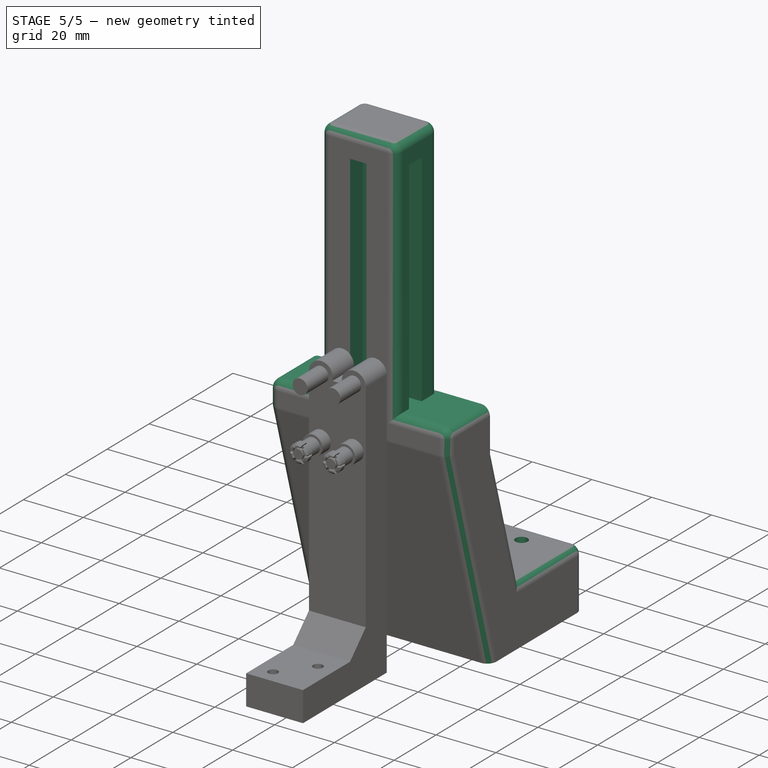
[diagram: stage 5 of 5 — iso view after this stage's code; geometry added in this stage tinted green]
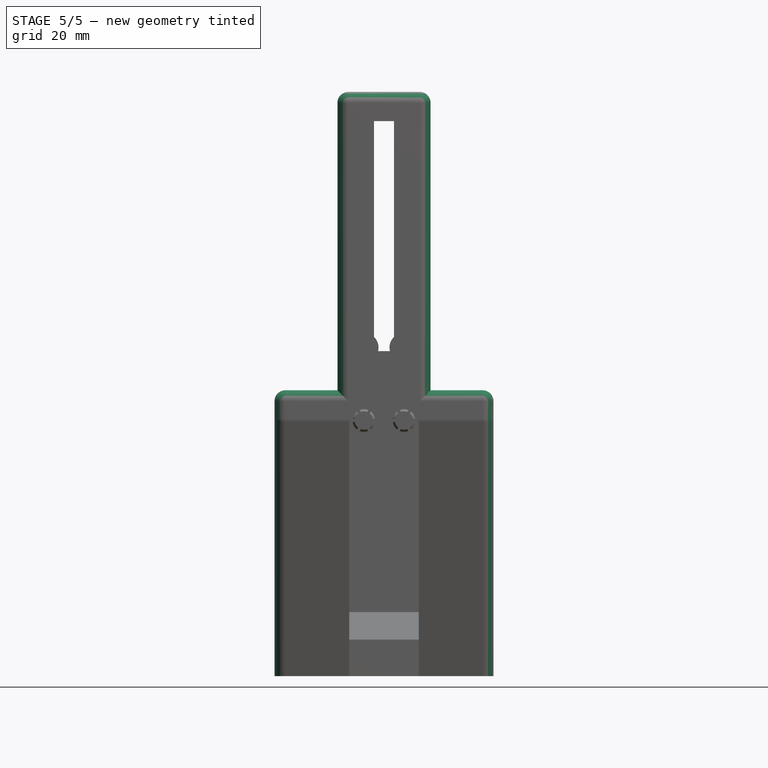
[diagram: stage 5 of 5 — front view after this stage's code; geometry added in this stage tinted green]
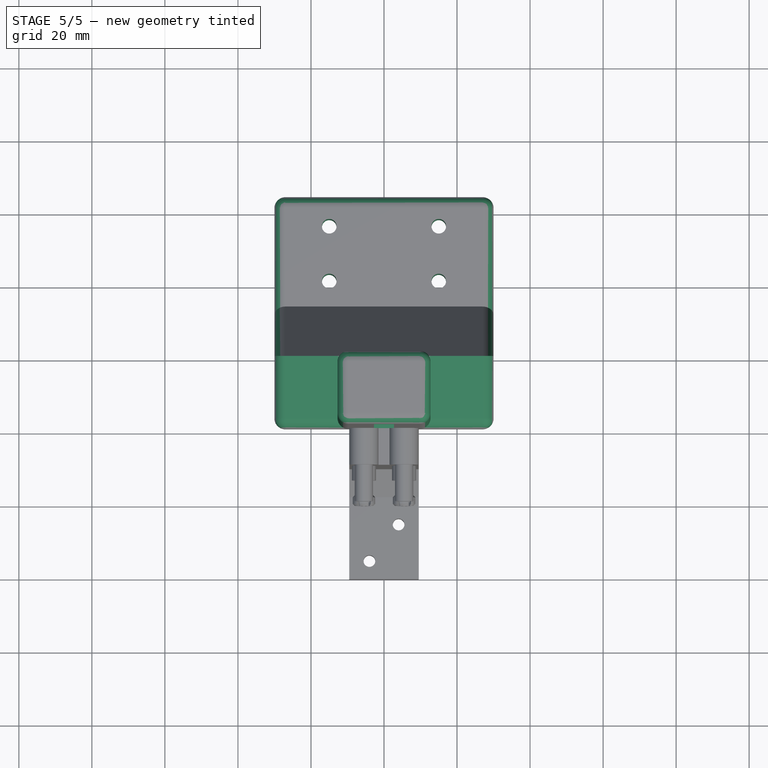
[diagram: stage 5 of 5 — top view after this stage's code; geometry added in this stage tinted green]
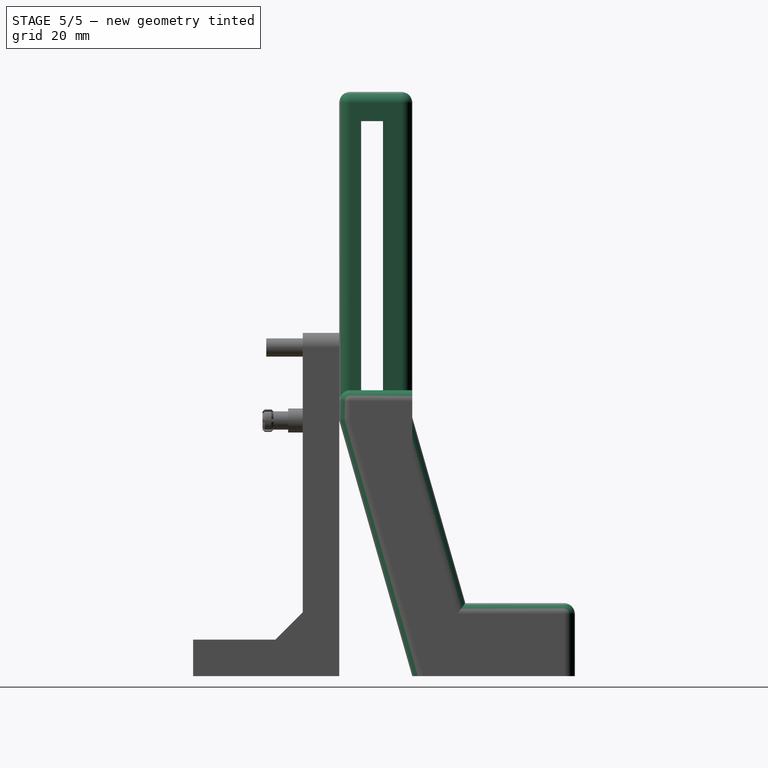
[diagram: stage 5 of 5 — right view after this stage's code; geometry added in this stage tinted green]
FEATURE [Sketcher::SketchObject] Sketch001
  ArcFitTolerance = 1e-06
  AttachmentSupport = -> [Pad]
  ExternalGeometry = -> [Pad]
  FullyConstrained = false
  MakeInternals = false
  MapMode = 5
  Placement = pos=(1e-15,2.6e-15,20) rot=(0,0,-1;1.5708rad)
  sketch-geometry (5):
    g0: Circle CenterX=-56.5162 CenterY=-15 CenterZ=0 NormalX=0 NormalY=0 NormalZ=1 AngleXU=0 Radius=2
    g1: Circle CenterX=-56.5162 CenterY=15 CenterZ=0 NormalX=0 NormalY=0 NormalZ=1 AngleXU=0 Radius=2
    g2: Circle CenterX=-41.5162 CenterY=15 CenterZ=0 NormalX=0 NormalY=0 NormalZ=1 AngleXU=0 Radius=2
    g3: Circle CenterX=-41.5162 CenterY=-15 CenterZ=0 NormalX=0 NormalY=0 NormalZ=1 AngleXU=0 Radius=2
    g4: LineSegment [constr] StartX=-202.672 StartY=0 StartZ=0 EndX=46.5188 EndY=0 EndZ=0
  constraints (12):
    c: Diameter(g0) = 4
    c: Diameter(g1) = 4
    c: Diameter(g2) = 4
    c: Diameter(g3) = 4
    c: DistanceX(g1,g2) = 15
    c: Horizontal(g4)
    c: PointOnObject(g4,g-1)
    c: Symmetric(g3,g2,g4)
    c: Symmetric(g1,g0,g4)
    c: Distance(g1,g4) = 15
    c: DistanceY(g-1,g2) = 15
    c: Distance(g1,g-3) = 6
FEATURE [PartDesign::Pocket] Pocket
  BaseFeature = -> Pad
  Direction = (0,0,-1)
  Length = 50
  Length2 = 5
  Placement = pos=(0,0,0) rot=(1,1,1;2.0944rad)
  Profile = -> Sketch001
  ReferenceAxis = -> Sketch001 [N_Axis]
  Refine = true
  Suppressed = false
  Type = 0
FEATURE [Sketcher::SketchObject] Sketch002
  ArcFitTolerance = 1e-06
  AttachmentSupport = -> [Pocket]
  ExternalGeometry = -> [Pocket]
  FullyConstrained = false
  MakeInternals = false
  MapMode = 5
  Placement = pos=(0,2e-16,0) rot=(0.57735,0.57735,-0.57735;2.0944rad)
  sketch-geometry (13):
    g0: LineSegment StartX=-160 StartY=12.75 StartZ=0 EndX=-78.2843 EndY=12.75 EndZ=0
    g1: LineSegment StartX=-78.2843 StartY=12.75 StartZ=0 EndX=-78.2843 EndY=30 EndZ=0
    g2: LineSegment StartX=-78.2843 StartY=30 StartZ=0 EndX=-160 EndY=30 EndZ=0
    g3: LineSegment StartX=-160 StartY=-30 StartZ=0 EndX=-78.2843 EndY=-30 EndZ=0
    g4: LineSegment StartX=-78.2843 StartY=-30 StartZ=0 EndX=-78.2843 EndY=-12.75 EndZ=0
    g5: LineSegment StartX=-78.2843 StartY=-12.75 StartZ=0 EndX=-160 EndY=-12.75 EndZ=0
    g6: LineSegment StartX=-160 StartY=-12.75 StartZ=0 EndX=-160 EndY=-30 EndZ=0
    g7: LineSegment [constr] StartX=-209.039 StartY=0 StartZ=0 EndX=220.674 EndY=0 EndZ=0
    g8: LineSegment StartX=-152 StartY=2.75 StartZ=0 EndX=-152 EndY=-2.75 EndZ=0
    g9: LineSegment StartX=-152 StartY=-2.75 StartZ=0 EndX=-78.2843 EndY=-2.75 EndZ=0
    g10: LineSegment StartX=-78.2843 StartY=-2.75 StartZ=0 EndX=-78.2843 EndY=2.75 EndZ=0
    g11: LineSegment StartX=-78.2843 StartY=2.75 StartZ=0 EndX=-152 EndY=2.75 EndZ=0
    g12: LineSegment StartX=-160 StartY=30 StartZ=0 EndX=-160 EndY=12.75 EndZ=0
  constraints (34):
    c: Coincident(g0,g1)
    c: Coincident(g1,g2)
    c: Vertical(g1)
    c: Horizontal(g0)
    c: Horizontal(g2)
    c: Coincident(g3,g4)
    c: Coincident(g4,g5)
    c: Coincident(g5,g6)
    c: Coincident(g6,g3)
    c: Horizontal(g3)
    c: Horizontal(g5)
    c: Vertical(g6)
    c: PointOnObject(g7,g-1)
    c: Symmetric(g0,g5,g7)
    c: Symmetric(g0,g4,g7)
    c: Coincident(g8,g9)
    c: Coincident(g9,g10)
    c: Coincident(g10,g11)
    c: Coincident(g11,g8)
    c: Vertical(g8)
    c: Horizontal(g9)
    c: Horizontal(g11)
    c: Symmetric(g10,g9,g-1)
    c: DistanceY(g9,g10) = 5.5
    c: Distance(g0,g11) = 10
    c: Symmetric(g3,g1,g-1)
    c: PointOnObject(g1,g-4)
    c: PointOnObject(g1,g-5)
    c: PointOnObject(g10,g-5)
    c: Coincident(g12,g2)
    c: Coincident(g12,g0)
    c: Vertical(g12)
    c: Distance(g8,g-3) = 8
    c: PointOnObject(g2,g-3)
FEATURE [PartDesign::Pocket] Pocket001
  BaseFeature = -> Pocket
  Direction = (0,1,0)
  Length = 50
  Length2 = 5
  Placement = pos=(0,0,0) rot=(1,1,1;2.0944rad)
  Profile = -> Sketch002
  ReferenceAxis = -> Sketch002 [N_Axis]
  Refine = true
  Suppressed = false
  Type = 0
FEATURE [Sketcher::SketchObject] Sketch003
  ArcFitTolerance = 1e-06
  AttachmentSupport = -> [Pocket001]
  ExternalGeometry = -> [Pocket001]
  FullyConstrained = true
  MakeInternals = false
  MapMode = 5
  Placement = pos=(12.75,6e-16,1.7e-15) rot=(0.57735,0.57735,0.57735;2.0944rad)
  sketch-geometry (4):
    g0: LineSegment StartX=6 StartY=152 StartZ=0 EndX=6 EndY=78.2843 EndZ=0
    g1: LineSegment StartX=6 StartY=78.2843 StartZ=0 EndX=12 EndY=78.2843 EndZ=0
    g2: LineSegment StartX=12 StartY=78.2843 StartZ=0 EndX=12 EndY=152 EndZ=0
    g3: LineSegment StartX=12 StartY=152 StartZ=0 EndX=6 EndY=152 EndZ=0
  constraints (12):
    c: Coincident(g0,g1)
    c: Coincident(g1,g2)
    c: Coincident(g2,g3)
    c: Coincident(g3,g0)
    c: Vertical(g0)
    c: Vertical(g2)
    c: Horizontal(g1)
    c: Horizontal(g3)
    c: PointOnObject(g1,g-4)
    c: DistanceX(g3,g3) = 6
    c: DistanceX(g-3,g0) = 6
    c: Distance(g2,g-3) = 8
FEATURE [PartDesign::Pocket] Pocket002
  BaseFeature = -> Pocket001
  Direction = (-1,0,0)
  Length = 50
  Length2 = 5
  Placement = pos=(0,0,0) rot=(1,1,1;2.0944rad)
  Profile = -> Sketch003
  ReferenceAxis = -> Sketch003 [N_Axis]
  Refine = true
  Suppressed = false
  Type = 0
FEATURE [PartDesign::Fillet] Fillet
  Base = -> Pocket002 [Edge28,Edge20,Edge29,Edge61,Edge22,Edge21,Edge30,Edge7,Edge1,Edge8,Edge41,Edge42,Edge14,Edge35,Edge34,Edge50,Edge13,Edge26,Edge49,Edge25,Edge24,Edge51,Edge32,Edge33]
  BaseFeature = -> Pocket002
  Placement = pos=(0,0,0) rot=(1,1,1;2.0944rad)
  Radius = 3
  Refine = true
  SupportTransform = false
  Suppressed = false
  UseAllEdges = false
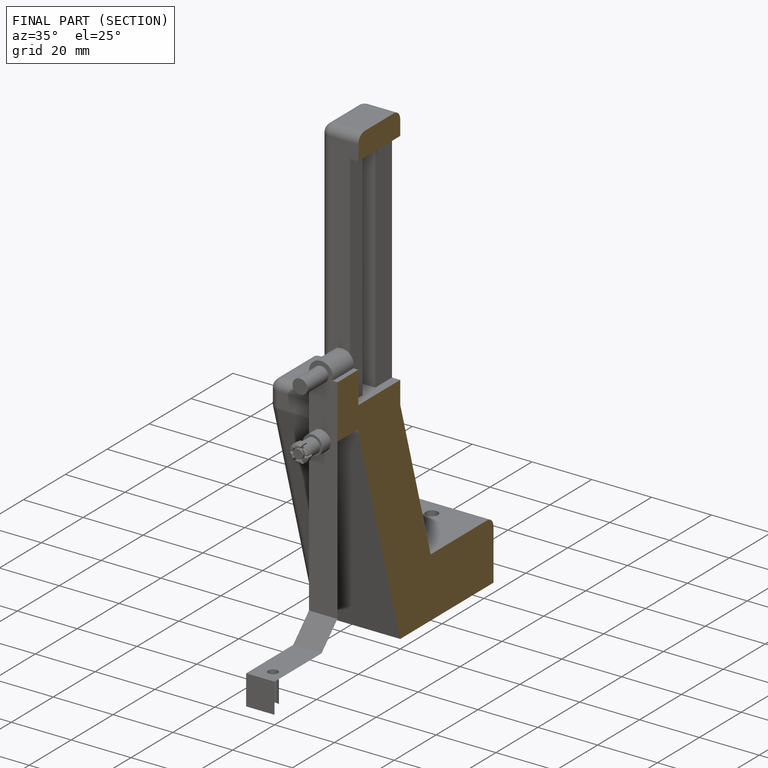
[diagram: finished part — half-section view (interior)]
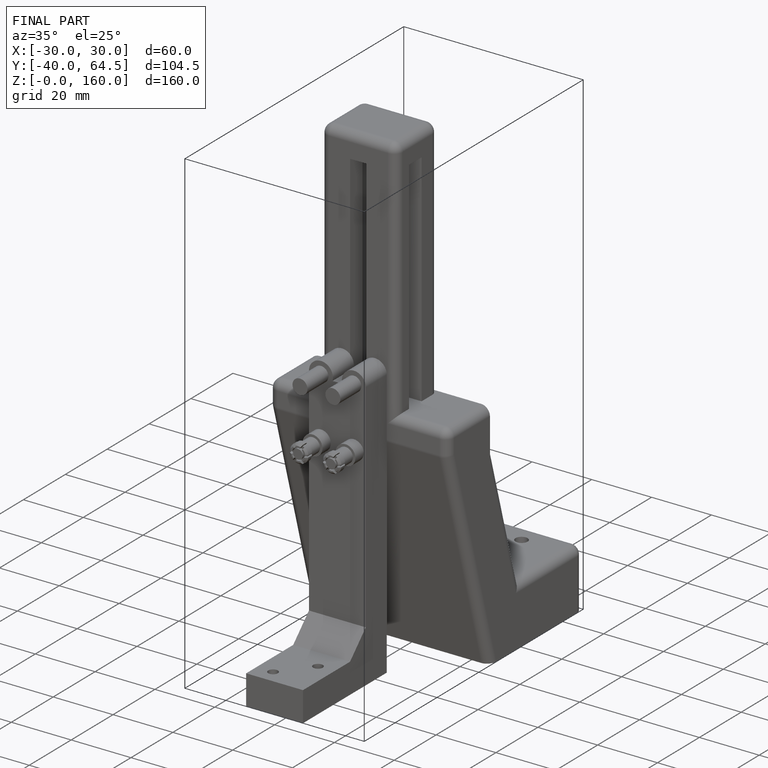
[diagram: finished part — iso view with bounding-box wireframe]
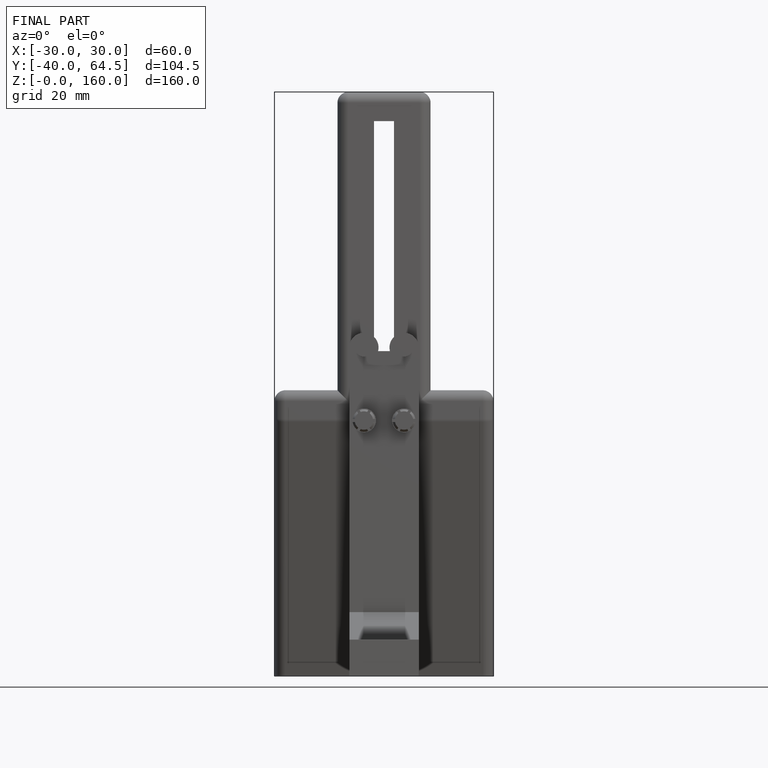
[diagram: finished part — front view with bounding-box wireframe]
